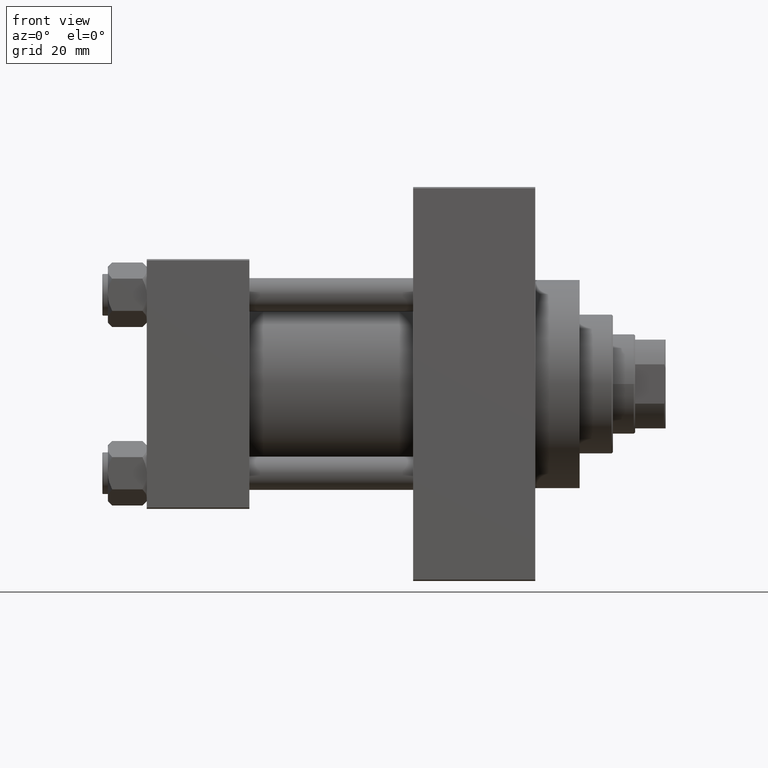
[diagram: clean part render]
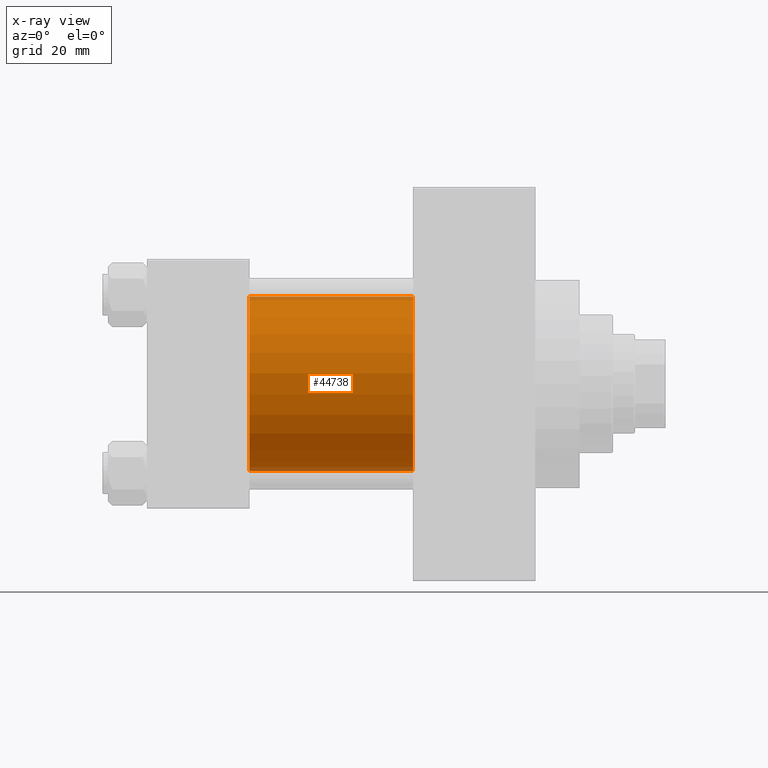
[diagram: x-ray — body ghosted, one internal face saturated and labeled with its STEP entity id]
A machine part, front view, then the same camera in x-ray: the body is ghosted and one INTERNAL B-rep face — a face not visible from any outside direction — is saturated and labeled: STEP entity #44738.
In plain terms, the highlighted cylindrical surface (partial cylindrical patch) has radius 31.5 mm, axis along (-1, -0, -0).
Its self-contained STEP definition (entity closure, byte-faithful):
#754 = EDGE_CURVE ( 'NONE', #15366, #8532, #15474, .T. ) ;
#1792 = CIRCLE ( 'NONE', #17792, 31.50000000000000000 ) ;
#2473 = ORIENTED_EDGE ( 'NONE', *, *, #754, .F. ) ;
#4441 = CARTESIAN_POINT ( 'NONE',  ( 96.00000000000000000, -2.602085213965210642E-15, 0.000000000000000000 ) ) ;
#6480 = CARTESIAN_POINT ( 'NONE',  ( 96.00000000000000000, -2.602085213965210642E-15, 0.000000000000000000 ) ) ;
#7142 = CARTESIAN_POINT ( 'NONE',  ( 96.00000000000000000, -2.602085213965210642E-15, 31.50000000000000000 ) ) ;
#7297 = CARTESIAN_POINT ( 'NONE',  ( 37.00000000000000000, -2.602085213965210642E-15, 0.000000000000000000 ) ) ;
#8486 = DIRECTION ( 'NONE',  ( 0.000000000000000000, 0.000000000000000000, -1.000000000000000000 ) ) ;
#8532 = VERTEX_POINT ( 'NONE', #40087 ) ;
#9364 = LINE ( 'NONE', #27520, #10128 ) ;
#10128 = VECTOR ( 'NONE', #42080, 1000.000000000000000 ) ;
#11218 = CARTESIAN_POINT ( 'NONE',  ( 37.00000000000000000, 1.255552203348951850E-15, -31.50000000000000000 ) ) ;
#11346 = VERTEX_POINT ( 'NONE', #33757 ) ;
#14437 = CIRCLE ( 'NONE', #45721, 31.50000000000000000 ) ;
#15366 = VERTEX_POINT ( 'NONE', #46023 ) ;
#15474 = LINE ( 'NONE', #7142, #22510 ) ;
#16102 = EDGE_CURVE ( 'NONE', #8532, #26247, #1792, .T. ) ;
#17792 = AXIS2_PLACEMENT_3D ( 'NONE', #7297, #43135, #32831 ) ;
#18686 = AXIS2_PLACEMENT_3D ( 'NONE', #6480, #24620, #24164 ) ;
#19236 = EDGE_CURVE ( 'NONE', #11346, #26247, #9364, .T. ) ;
#19563 = ORIENTED_EDGE ( 'NONE', *, *, #16102, .F. ) ;
#21248 = EDGE_LOOP ( 'NONE', ( #22234, #35408, #19563, #2473 ) ) ;
#21700 = DIRECTION ( 'NONE',  ( -1.000000000000000000, -0.000000000000000000, -0.000000000000000000 ) ) ;
#22234 = ORIENTED_EDGE ( 'NONE', *, *, #38544, .T. ) ;
#22510 = VECTOR ( 'NONE', #21700, 1000.000000000000000 ) ;
#24164 = DIRECTION ( 'NONE',  ( 0.000000000000000000, 0.000000000000000000, 1.000000000000000000 ) ) ;
#24620 = DIRECTION ( 'NONE',  ( -1.000000000000000000, -0.000000000000000000, -0.000000000000000000 ) ) ;
#26247 = VERTEX_POINT ( 'NONE', #11218 ) ;
#27520 = CARTESIAN_POINT ( 'NONE',  ( 96.00000000000000000, 1.255552203348951850E-15, -31.50000000000000000 ) ) ;
#32831 = DIRECTION ( 'NONE',  ( 0.000000000000000000, 0.000000000000000000, -1.000000000000000000 ) ) ;
#33757 = CARTESIAN_POINT ( 'NONE',  ( 96.00000000000000000, 1.255552203348951850E-15, -31.50000000000000000 ) ) ;
#34021 = DIRECTION ( 'NONE',  ( 1.000000000000000000, 0.000000000000000000, 0.000000000000000000 ) ) ;
#35135 = CYLINDRICAL_SURFACE ( 'NONE', #18686, 31.50000000000000000 ) ;
#35408 = ORIENTED_EDGE ( 'NONE', *, *, #19236, .T. ) ;
#38544 = EDGE_CURVE ( 'NONE', #15366, #11346, #14437, .T. ) ;
#40087 = CARTESIAN_POINT ( 'NONE',  ( 37.00000000000000000, -2.602085213965210642E-15, 31.50000000000000000 ) ) ;
#42080 = DIRECTION ( 'NONE',  ( -1.000000000000000000, -0.000000000000000000, -0.000000000000000000 ) ) ;
#43135 = DIRECTION ( 'NONE',  ( 1.000000000000000000, 0.000000000000000000, 0.000000000000000000 ) ) ;
#44738 = ADVANCED_FACE ( 'NONE', ( #46813 ), #35135, .F. ) ;
#45721 = AXIS2_PLACEMENT_3D ( 'NONE', #4441, #34021, #8486 ) ;
#46023 = CARTESIAN_POINT ( 'NONE',  ( 96.00000000000000000, -2.602085213965210642E-15, 31.50000000000000000 ) ) ;
#46813 = FACE_OUTER_BOUND ( 'NONE', #21248, .T. ) ;